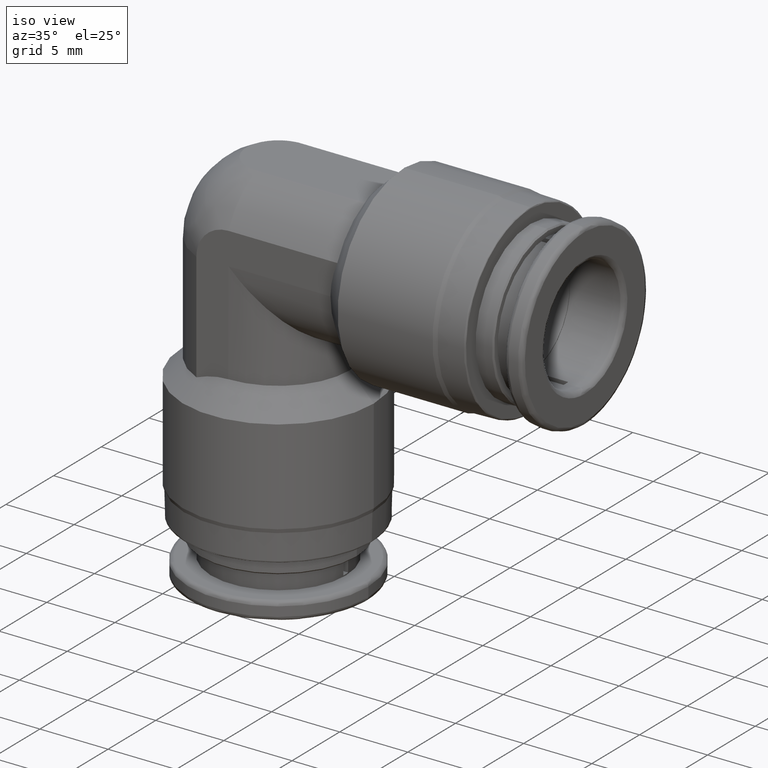
[diagram: clean part render]
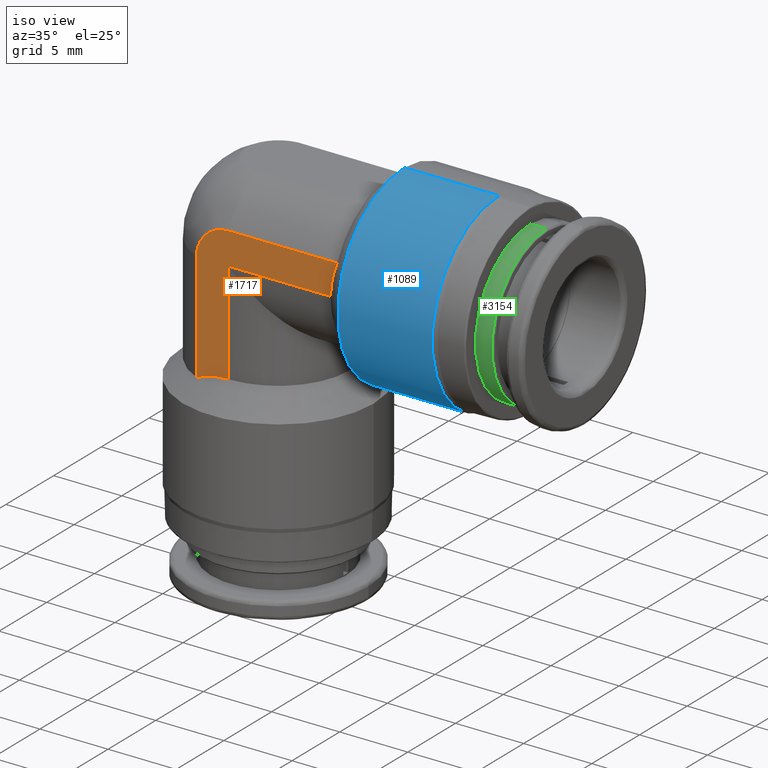
[diagram: same view with three faces highlighted in distinct colors, each labeled with its STEP entity id]
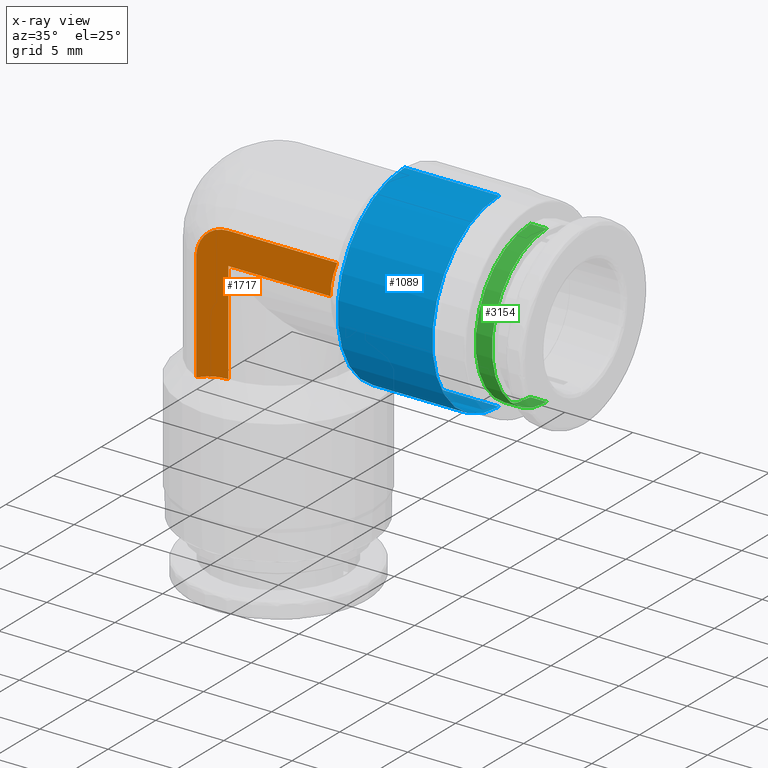
[diagram: x-ray of the same camera — body ghosted, the three highlighted faces saturated]
A machine part, iso view with three faces highlighted in distinct colors.
The next image is the same camera in x-ray (body ghosted, the three faces saturated) — at least one of them is partly hidden behind the body in this view.
Their STEP definitions:

[orange] entity #1717 — the highlighted planar face has unit normal (0, -1, 0).
#15 = CARTESIAN_POINT ( 'NONE',  ( -0.08296660912006352500, -0.2066929133858267700, 0.04095945874659096700 ) ) ;
#27 = ORIENTED_EDGE ( 'NONE', *, *, #605, .T. ) ;
#41 = CARTESIAN_POINT ( 'NONE',  ( 0.2952755905520185700, -0.2066929133859420100, 0.01597781882615192900 ) ) ;
#325 = EDGE_CURVE ( 'NONE', #718, #2034, #3291, .T. ) ;
#332 = CARTESIAN_POINT ( 'NONE',  ( 0.2952755905514894400, -0.2066929133858267900, 2.812566985128604700E-017 ) ) ;
#351 = CARTESIAN_POINT ( 'NONE',  ( -0.09233101889416185600, -0.2066929133858266500, -0.3543307086614175300 ) ) ;
#359 = CARTESIAN_POINT ( 'NONE',  ( 0.2971430768798329300, -0.2066929133858268200, 0.03163119548435976100 ) ) ;
#515 = CARTESIAN_POINT ( 'NONE',  ( -0.07758259556449180500, -0.2066929133858269000, -0.3089453049714965800 ) ) ;
#587 = CARTESIAN_POINT ( 'NONE',  ( -0.06952290590032439400, -0.2066929133858266800, 0.06105590854693345600 ) ) ;
#605 = EDGE_CURVE ( 'NONE', #1379, #3112, #2714, .T. ) ;
#622 = ORIENTED_EDGE ( 'NONE', *, *, #3018, .T. ) ;
#703 = CARTESIAN_POINT ( 'NONE',  ( 0.3543307086614173600, -0.2066929133858267900, -4.895471604646378500E-016 ) ) ;
#713 = ORIENTED_EDGE ( 'NONE', *, *, #1415, .F. ) ;
#718 = VERTEX_POINT ( 'NONE', #1519 ) ;
#764 = ORIENTED_EDGE ( 'NONE', *, *, #2073, .T. ) ;
#808 = VERTEX_POINT ( 'NONE', #2765 ) ;
#811 = DIRECTION ( 'NONE',  ( -1.000000000000000000, -0.0000000000000000000, -0.0000000000000000000 ) ) ;
#837 = CARTESIAN_POINT ( 'NONE',  ( -0.08009604233932314500, -0.2066929133858216300, 0.04632978613244070900 ) ) ;
#847 = CARTESIAN_POINT ( 'NONE',  ( -0.02974485944660927200, -0.2066929133858267900, 0.08761761524448141700 ) ) ;
#883 = CARTESIAN_POINT ( 'NONE',  ( -0.06100618400921011000, -0.2066929133858267100, 0.06956654315079384400 ) ) ;
#916 = CARTESIAN_POINT ( 'NONE',  ( 0.3089453049697835100, -0.2066929133858267700, 0.07758259556002145000 ) ) ;
#1033 = CARTESIAN_POINT ( 'NONE',  ( 3.611839760110788400E-016, -0.2066929133858269000, -0.2952755905514892800 ) ) ;
#1038 = B_SPLINE_CURVE_WITH_KNOTS ( 'NONE', 3,
 ( #1033, #1064, #1621, #3274, #515, #1082 ),
 .UNSPECIFIED., .F., .F.,
 ( 4, 2, 4 ),
 ( 2.508119643778128900E-015, 0.001199541598627509000, 0.002399083197252509700 ),
 .UNSPECIFIED. ) ;
#1064 = CARTESIAN_POINT ( 'NONE',  ( -0.01597781882353644500, -0.2066929133858268500, -0.2952755905520662000 ) ) ;
#1082 = CARTESIAN_POINT ( 'NONE',  ( -0.09233101887388260600, -0.2066929133858267700, -0.3149606299488831900 ) ) ;
#1122 = CARTESIAN_POINT ( 'NONE',  ( -0.09233101889416202300, -0.2066929133858267100, 0.01219270420720402700 ) ) ;
#1143 = FACE_OUTER_BOUND ( 'NONE', #1558, .T. ) ;
#1148 = EDGE_CURVE ( 'NONE', #2034, #1379, #2154, .T. ) ;
#1157 = VERTEX_POINT ( 'NONE', #1754 ) ;
#1158 = CARTESIAN_POINT ( 'NONE',  ( -0.04092132426780856200, -0.2066929133858267900, 0.08298824244914086700 ) ) ;
#1273 = CARTESIAN_POINT ( 'NONE',  ( 0.3543307086614173600, -0.2066929133858267900, 0.0000000000000000000 ) ) ;
#1287 = DIRECTION ( 'NONE',  ( 0.0000000000000000000, -1.000000000000000000, 3.698442877571480200E-016 ) ) ;
#1344 = ORIENTED_EDGE ( 'NONE', *, *, #325, .T. ) ;
#1379 = VERTEX_POINT ( 'NONE', #3312 ) ;
#1413 = VECTOR ( 'NONE', #3203, 39.37007874015748100 ) ;
#1415 = EDGE_CURVE ( 'NONE', #3233, #1157, #1038, .T. ) ;
#1421 = CARTESIAN_POINT ( 'NONE',  ( -0.01209088705545581700, -0.2066929133858267700, 0.09173315966412592900 ) ) ;
#1502 = CARTESIAN_POINT ( 'NONE',  ( 3.414809992080329000E-016, -0.2066929133858267900, -4.895471604646378500E-016 ) ) ;
#1519 = CARTESIAN_POINT ( 'NONE',  ( 1.696360597987210600E-016, -0.2066929133858267900, -9.492218054414774700E-018 ) ) ;
#1558 = EDGE_LOOP ( 'NONE', ( #713, #764, #1344, #3193, #27, #622, #2353 ) ) ;
#1592 = EDGE_CURVE ( 'NONE', #1157, #808, #3132, .T. ) ;
#1621 = CARTESIAN_POINT ( 'NONE',  ( -0.03163119547925341600, -0.2066929133858269000, -0.2971430768792199800 ) ) ;
#1711 = CARTESIAN_POINT ( 'NONE',  ( -0.02388465244321254900, -0.2066929133858267700, 0.08939063434957125700 ) ) ;
#1717 = ADVANCED_FACE ( 'NONE', ( #1143 ), #2417, .T. ) ;
#1754 = CARTESIAN_POINT ( 'NONE',  ( -0.09233101887388260600, -0.2066929133858267700, -0.3149606299488831900 ) ) ;
#1831 = DIRECTION ( 'NONE',  ( 1.000000000000000000, 0.0000000000000000000, 0.0000000000000000000 ) ) ;
#1938 = CARTESIAN_POINT ( 'NONE',  ( 0.3543307086614173600, -0.2066929133858267700, 0.09233101889416220300 ) ) ;
#1979 = LINE ( 'NONE', #1502, #1413 ) ;
#1992 = CARTESIAN_POINT ( 'NONE',  ( -0.07334498668429359500, -0.2066929133858216300, 0.05641221507600228300 ) ) ;
#2034 = VERTEX_POINT ( 'NONE', #2058 ) ;
#2058 = CARTESIAN_POINT ( 'NONE',  ( 0.2952755905514894400, -0.2066929133858267900, 2.812566985128604700E-017 ) ) ;
#2073 = EDGE_CURVE ( 'NONE', #3233, #718, #1979, .T. ) ;
#2139 = DIRECTION ( 'NONE',  ( 0.0000000000000000000, -3.698442877571480200E-016, -1.000000000000000000 ) ) ;
#2154 = B_SPLINE_CURVE_WITH_KNOTS ( 'NONE', 3,
 ( #332, #41, #359, #2603, #916, #2893 ),
 .UNSPECIFIED., .F., .F.,
 ( 4, 2, 4 ),
 ( 2.301289571771320600E-015, 0.001199541598823498500, 0.002399083197644695500 ),
 .UNSPECIFIED. ) ;
#2301 = DIRECTION ( 'NONE',  ( -1.171453342316279900E-015, 0.0000000000000000000, 1.000000000000000000 ) ) ;
#2353 = ORIENTED_EDGE ( 'NONE', *, *, #1592, .F. ) ;
#2417 = PLANE ( 'NONE',  #2753 ) ;
#2589 = CARTESIAN_POINT ( 'NONE',  ( 7.582401355855259500E-033, -0.2066929133858267700, 0.09233101889416210600 ) ) ;
#2603 = CARTESIAN_POINT ( 'NONE',  ( 0.3039679358476097800, -0.2066929133858266800, 0.06240113661665876200 ) ) ;
#2642 = VECTOR ( 'NONE', #2301, 39.37007874015748100 ) ;
#2654 = CARTESIAN_POINT ( 'NONE',  ( 3.611839760110788400E-016, -0.2066929133858269000, -0.2952755905514892800 ) ) ;
#2714 = LINE ( 'NONE', #1938, #3287 ) ;
#2753 = AXIS2_PLACEMENT_3D ( 'NONE', #703, #1287, #2139 ) ;
#2765 = CARTESIAN_POINT ( 'NONE',  ( -0.09233101889416214800, -0.2066929133858267100, -1.105030032509745100E-016 ) ) ;
#2816 = CARTESIAN_POINT ( 'NONE',  ( -0.08988098729059174100, -0.2066929133858267100, 0.02430841278953791200 ) ) ;
#2850 = CARTESIAN_POINT ( 'NONE',  ( -0.05625524123589847200, -0.2066929133858269300, 0.07346242766914623500 ) ) ;
#2861 = CARTESIAN_POINT ( 'NONE',  ( -0.006096352103602049000, -0.2066929133858267100, 0.09233101889416203700 ) ) ;
#2893 = CARTESIAN_POINT ( 'NONE',  ( 0.3149606299391802300, -0.2066929133858267700, 0.09233101889416210600 ) ) ;
#2937 = VECTOR ( 'NONE', #1831, 39.37007874015748100 ) ;
#3018 = EDGE_CURVE ( 'NONE', #3112, #808, #3537, .T. ) ;
#3094 = CARTESIAN_POINT ( 'NONE',  ( 7.582401355855259500E-033, -0.2066929133858267700, 0.09233101889416210600 ) ) ;
#3112 = VERTEX_POINT ( 'NONE', #2589 ) ;
#3121 = CARTESIAN_POINT ( 'NONE',  ( -0.04622235320139826700, -0.2066929133858267900, 0.08015531492096365800 ) ) ;
#3132 = LINE ( 'NONE', #351, #2642 ) ;
#3193 = ORIENTED_EDGE ( 'NONE', *, *, #1148, .T. ) ;
#3203 = DIRECTION ( 'NONE',  ( -0.0000000000000000000, 3.698442877571480200E-016, 1.000000000000000000 ) ) ;
#3233 = VERTEX_POINT ( 'NONE', #2654 ) ;
#3274 = CARTESIAN_POINT ( 'NONE',  ( -0.06240113660669462100, -0.2066929133858268500, -0.3039679358448792400 ) ) ;
#3287 = VECTOR ( 'NONE', #811, 39.37007874015748100 ) ;
#3291 = LINE ( 'NONE', #1273, #2937 ) ;
#3312 = CARTESIAN_POINT ( 'NONE',  ( 0.3149606299391802300, -0.2066929133858267700, 0.09233101889416210600 ) ) ;
#3380 = CARTESIAN_POINT ( 'NONE',  ( -0.09233101889416214800, -0.2066929133858267100, -1.105030032509745100E-016 ) ) ;
#3537 = B_SPLINE_CURVE_WITH_KNOTS ( 'NONE', 3,
 ( #3094, #2861, #1421, #1711, #847, #1158, #3121, #2850, #883, #587, #1992, #837, #15, #2816, #1122, #3380 ),
 .UNSPECIFIED., .F., .F.,
 ( 4, 2, 2, 2, 2, 2, 2, 4 ),
 ( 3.588769808204964400E-019, 0.0004579485390858502500, 0.0009158970781716999500, 0.001373845617257549600, 0.001831794156343399900, 0.002289742695429250200, 0.002747691234515101400, 0.003663588312686802800 ),
 .UNSPECIFIED. ) ;

[blue] entity #1089 — the highlighted cylindrical surface (partial cylindrical patch) has radius 7 mm, axis along (-1, 0, 0).
#68 = ORIENTED_EDGE ( 'NONE', *, *, #2830, .F. ) ;
#115 = EDGE_CURVE ( 'NONE', #2098, #2799, #1653, .T. ) ;
#255 = CARTESIAN_POINT ( 'NONE',  ( 0.6377952755905511600, 0.0000000000000000000, 0.0000000000000000000 ) ) ;
#288 = DIRECTION ( 'NONE',  ( -1.000000000000000000, 0.0000000000000000000, 0.0000000000000000000 ) ) ;
#397 = CIRCLE ( 'NONE', #1419, 0.2755905511811023700 ) ;
#723 = CARTESIAN_POINT ( 'NONE',  ( 0.3641732284094589300, 3.375010863026941500E-017, 0.2755905511186372800 ) ) ;
#784 = CARTESIAN_POINT ( 'NONE',  ( 0.6377952755905511600, 0.0000000000000000000, 0.2755905511811023700 ) ) ;
#868 = VERTEX_POINT ( 'NONE', #784 ) ;
#872 = CYLINDRICAL_SURFACE ( 'NONE', #2171, 0.2755905511811023700 ) ;
#897 = ORIENTED_EDGE ( 'NONE', *, *, #115, .F. ) ;
#1021 = CARTESIAN_POINT ( 'NONE',  ( 0.3641732284094589300, 0.0000000000000000000, 0.0000000000000000000 ) ) ;
#1072 = ORIENTED_EDGE ( 'NONE', *, *, #1575, .T. ) ;
#1089 = ADVANCED_FACE ( 'NONE', ( #1579 ), #872, .T. ) ;
#1166 = DIRECTION ( 'NONE',  ( -1.000000000000000000, 0.0000000000000000000, 0.0000000000000000000 ) ) ;
#1192 = LINE ( 'NONE', #2785, #3217 ) ;
#1350 = VERTEX_POINT ( 'NONE', #723 ) ;
#1393 = CIRCLE ( 'NONE', #1668, 0.2755905511186372800 ) ;
#1419 = AXIS2_PLACEMENT_3D ( 'NONE', #255, #2269, #1980 ) ;
#1486 = VECTOR ( 'NONE', #1686, 39.37007874015748100 ) ;
#1510 = EDGE_CURVE ( 'NONE', #2098, #868, #397, .T. ) ;
#1511 = ORIENTED_EDGE ( 'NONE', *, *, #1510, .T. ) ;
#1575 = EDGE_CURVE ( 'NONE', #868, #1350, #1192, .T. ) ;
#1579 = FACE_OUTER_BOUND ( 'NONE', #2044, .T. ) ;
#1653 = LINE ( 'NONE', #3377, #1486 ) ;
#1668 = AXIS2_PLACEMENT_3D ( 'NONE', #1021, #2439, #1850 ) ;
#1686 = DIRECTION ( 'NONE',  ( -1.000000000000000000, 0.0000000000000000000, 0.0000000000000000000 ) ) ;
#1716 = DIRECTION ( 'NONE',  ( 0.0000000000000000000, 0.0000000000000000000, 1.000000000000000000 ) ) ;
#1850 = DIRECTION ( 'NONE',  ( 0.0000000000000000000, 0.0000000000000000000, -1.000000000000000000 ) ) ;
#1980 = DIRECTION ( 'NONE',  ( 0.0000000000000000000, 0.0000000000000000000, 1.000000000000000000 ) ) ;
#2044 = EDGE_LOOP ( 'NONE', ( #897, #1511, #1072, #68 ) ) ;
#2047 = CARTESIAN_POINT ( 'NONE',  ( 0.09842519685039370600, 0.0000000000000000000, 0.0000000000000000000 ) ) ;
#2098 = VERTEX_POINT ( 'NONE', #2900 ) ;
#2171 = AXIS2_PLACEMENT_3D ( 'NONE', #2047, #1166, #1716 ) ;
#2269 = DIRECTION ( 'NONE',  ( -1.000000000000000000, 0.0000000000000000000, 0.0000000000000000000 ) ) ;
#2439 = DIRECTION ( 'NONE',  ( -1.000000000000000000, -0.0000000000000000000, -0.0000000000000000000 ) ) ;
#2785 = CARTESIAN_POINT ( 'NONE',  ( 0.09842519685039370600, 0.0000000000000000000, 0.2755905511811023700 ) ) ;
#2799 = VERTEX_POINT ( 'NONE', #3549 ) ;
#2830 = EDGE_CURVE ( 'NONE', #2799, #1350, #1393, .T. ) ;
#2900 = CARTESIAN_POINT ( 'NONE',  ( 0.6377952755905511600, 3.375010863791918400E-017, -0.2755905511811023700 ) ) ;
#3217 = VECTOR ( 'NONE', #288, 39.37007874015748100 ) ;
#3377 = CARTESIAN_POINT ( 'NONE',  ( 0.09842519685039370600, 3.375010863791918400E-017, -0.2755905511811023700 ) ) ;
#3549 = CARTESIAN_POINT ( 'NONE',  ( 0.3641732284094589300, 3.375010863409430500E-017, -0.2755905511186372800 ) ) ;

[green] entity #3154 — the highlighted cylindrical surface (partial cylindrical patch) has radius 5.75 mm, axis along (-1, 0, -0).
#42 = CARTESIAN_POINT ( 'NONE',  ( 0.09667944472955641900, 0.0000000000000000000, 0.2263779527559049700 ) ) ;
#77 = VERTEX_POINT ( 'NONE', #2006 ) ;
#131 = VECTOR ( 'NONE', #1498, 39.37007874015748100 ) ;
#138 = DIRECTION ( 'NONE',  ( -1.206764157201257100E-015, 0.0000000000000000000, 1.000000000000000000 ) ) ;
#219 = CIRCLE ( 'NONE', #1130, 0.2263779527559055300 ) ;
#262 = CARTESIAN_POINT ( 'NONE',  ( 0.7755905511811017600, 0.0000000000000000000, 0.2263779527528016500 ) ) ;
#296 = DIRECTION ( 'NONE',  ( -1.206764157201257100E-015, 0.0000000000000000000, 1.000000000000000000 ) ) ;
#342 = FACE_OUTER_BOUND ( 'NONE', #944, .T. ) ;
#366 = ORIENTED_EDGE ( 'NONE', *, *, #1004, .T. ) ;
#561 = CARTESIAN_POINT ( 'NONE',  ( 0.7755905511811020900, 0.0000000000000000000, 2.628851988662515200E-016 ) ) ;
#944 = EDGE_LOOP ( 'NONE', ( #986, #366, #2393, #3153 ) ) ;
#986 = ORIENTED_EDGE ( 'NONE', *, *, #1177, .F. ) ;
#1004 = EDGE_CURVE ( 'NONE', #77, #3552, #219, .T. ) ;
#1130 = AXIS2_PLACEMENT_3D ( 'NONE', #561, #1406, #296 ) ;
#1177 = EDGE_CURVE ( 'NONE', #77, #2569, #3128, .T. ) ;
#1204 = CARTESIAN_POINT ( 'NONE',  ( 0.09667944472955696000, 2.772330352400504200E-017, -0.2263779527559060500 ) ) ;
#1263 = CYLINDRICAL_SURFACE ( 'NONE', #3428, 0.2263779527559055300 ) ;
#1278 = VECTOR ( 'NONE', #3138, 39.37007874015748100 ) ;
#1294 = VERTEX_POINT ( 'NONE', #3204 ) ;
#1406 = DIRECTION ( 'NONE',  ( -1.000000000000000000, 0.0000000000000000000, -1.171453342316279900E-015 ) ) ;
#1498 = DIRECTION ( 'NONE',  ( -1.000000000000000000, 0.0000000000000000000, -1.171453342316279900E-015 ) ) ;
#1787 = CARTESIAN_POINT ( 'NONE',  ( 0.7283464566929130900, 0.0000000000000000000, 2.075409464733563700E-016 ) ) ;
#2006 = CARTESIAN_POINT ( 'NONE',  ( 0.7755905511811023200, 2.772330352362490000E-017, -0.2263779527528011200 ) ) ;
#2064 = DIRECTION ( 'NONE',  ( -1.206764157201257100E-015, 0.0000000000000000000, 1.000000000000000000 ) ) ;
#2160 = LINE ( 'NONE', #42, #1278 ) ;
#2340 = CARTESIAN_POINT ( 'NONE',  ( 0.09667944472955669600, 0.0000000000000000000, -5.324274859220551500E-016 ) ) ;
#2393 = ORIENTED_EDGE ( 'NONE', *, *, #2446, .T. ) ;
#2446 = EDGE_CURVE ( 'NONE', #3552, #1294, #2160, .T. ) ;
#2536 = CIRCLE ( 'NONE', #3613, 0.2263779527559055300 ) ;
#2569 = VERTEX_POINT ( 'NONE', #3459 ) ;
#3128 = LINE ( 'NONE', #1204, #131 ) ;
#3138 = DIRECTION ( 'NONE',  ( -1.000000000000000000, 0.0000000000000000000, -1.171453342316279900E-015 ) ) ;
#3153 = ORIENTED_EDGE ( 'NONE', *, *, #3161, .F. ) ;
#3154 = ADVANCED_FACE ( 'NONE', ( #342 ), #1263, .T. ) ;
#3161 = EDGE_CURVE ( 'NONE', #2569, #1294, #2536, .T. ) ;
#3187 = DIRECTION ( 'NONE',  ( -1.000000000000000000, 0.0000000000000000000, -1.171453342316279900E-015 ) ) ;
#3204 = CARTESIAN_POINT ( 'NONE',  ( 0.7283464566929128700, 0.0000000000000000000, 0.2263779527559057200 ) ) ;
#3428 = AXIS2_PLACEMENT_3D ( 'NONE', #2340, #3187, #2064 ) ;
#3459 = CARTESIAN_POINT ( 'NONE',  ( 0.7283464566929134200, 2.772330352400505100E-017, -0.2263779527559053000 ) ) ;
#3508 = DIRECTION ( 'NONE',  ( -1.000000000000000000, 0.0000000000000000000, -1.171453342316279900E-015 ) ) ;
#3552 = VERTEX_POINT ( 'NONE', #262 ) ;
#3613 = AXIS2_PLACEMENT_3D ( 'NONE', #1787, #3508, #138 ) ;